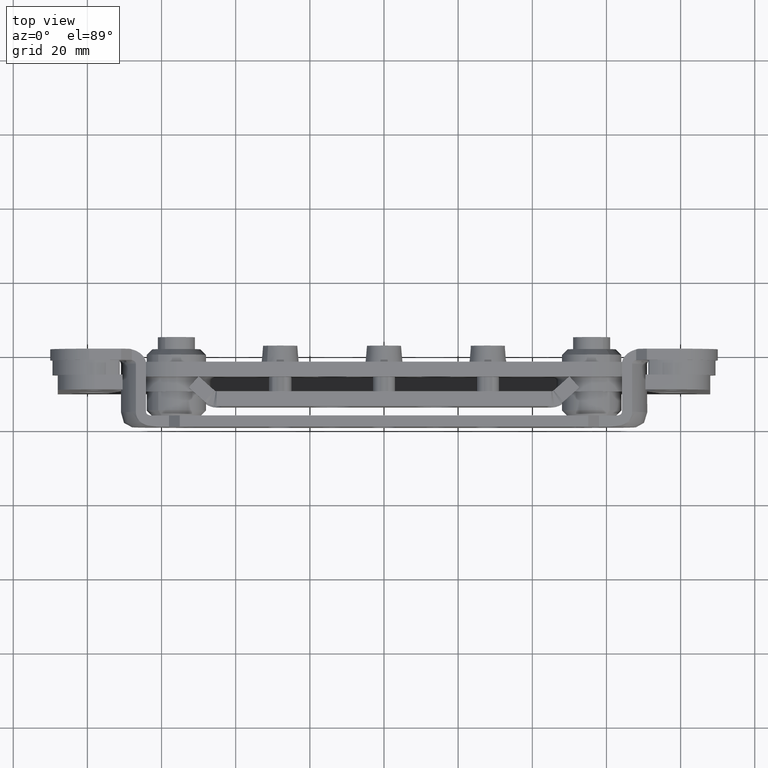
[diagram: clean part render]
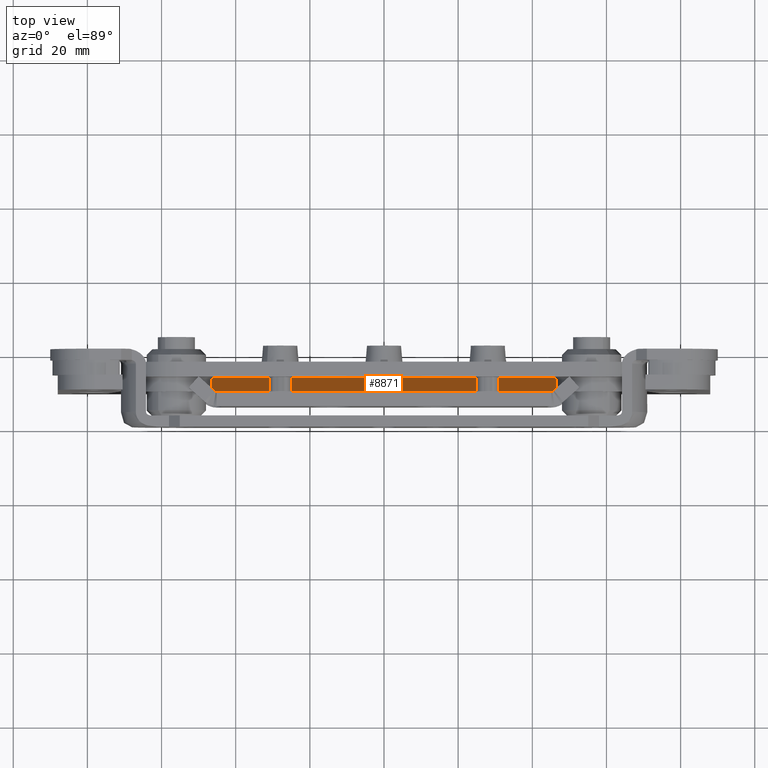
[diagram: same view with one face highlighted and labeled with its STEP entity id]
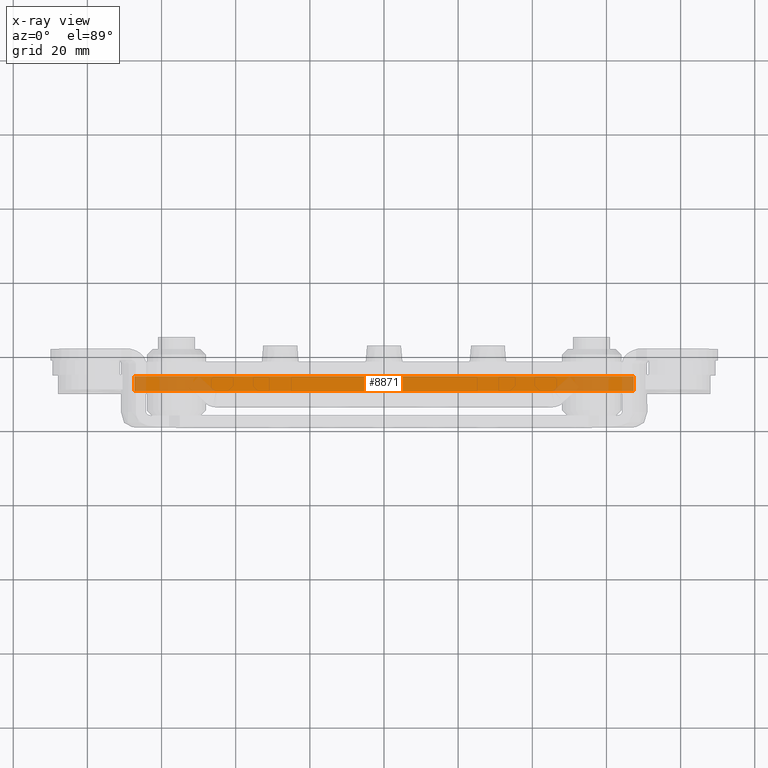
[diagram: x-ray of the same camera — body ghosted, the highlighted face saturated]
A machine part, top view. The second image highlights one B-rep face of the part: STEP entity #8871.
The next image is the same camera in x-ray: the body ghosted, the highlighted face saturated — about 26% of this face is hidden behind the body in this view.
In plain terms, the highlighted planar face has unit normal (-0, 0, 1).
Its self-contained STEP definition (entity closure, byte-faithful):
#47 = DIRECTION ( 'NONE',  ( 0.000000000000000000, -1.000000000000000000, 0.000000000000000000 ) ) ;
#177 = FACE_OUTER_BOUND ( 'NONE', #3874, .T. ) ;
#609 = EDGE_CURVE ( 'NONE', #796, #5939, #2152, .T. ) ;
#667 = ORIENTED_EDGE ( 'NONE', *, *, #1344, .T. ) ;
#793 = DIRECTION ( 'NONE',  ( -1.000000000000000000, -0.000000000000000000, -0.000000000000000000 ) ) ;
#796 = VERTEX_POINT ( 'NONE', #1902 ) ;
#1344 = EDGE_CURVE ( 'NONE', #796, #9331, #7687, .T. ) ;
#1902 = CARTESIAN_POINT ( 'NONE',  ( 67.34999999999999432, 0.000000000000000000, 13.00000000000001066 ) ) ;
#2066 = LINE ( 'NONE', #11052, #9233 ) ;
#2152 = LINE ( 'NONE', #9612, #4011 ) ;
#2266 = ORIENTED_EDGE ( 'NONE', *, *, #10273, .F. ) ;
#2622 = CARTESIAN_POINT ( 'NONE',  ( 0.000000000000000000, -4.000000000000000000, 13.00000000000001066 ) ) ;
#3686 = VECTOR ( 'NONE', #3938, 1000.000000000000000 ) ;
#3771 = LINE ( 'NONE', #2622, #5685 ) ;
#3823 = CARTESIAN_POINT ( 'NONE',  ( -67.34999999999999432, 0.000000000000000000, 13.00000000000000533 ) ) ;
#3874 = EDGE_LOOP ( 'NONE', ( #5732, #667, #8819, #2266 ) ) ;
#3885 = PLANE ( 'NONE',  #9307 ) ;
#3938 = DIRECTION ( 'NONE',  ( -1.000000000000000000, -0.000000000000000000, -0.000000000000000000 ) ) ;
#4011 = VECTOR ( 'NONE', #5854, 1000.000000000000000 ) ;
#4665 = CARTESIAN_POINT ( 'NONE',  ( -67.34999999999999432, 0.000000000000000000, 13.00000000000000533 ) ) ;
#5685 = VECTOR ( 'NONE', #793, 1000.000000000000000 ) ;
#5732 = ORIENTED_EDGE ( 'NONE', *, *, #609, .F. ) ;
#5854 = DIRECTION ( 'NONE',  ( 0.000000000000000000, -1.000000000000000000, 0.000000000000000000 ) ) ;
#5939 = VERTEX_POINT ( 'NONE', #9993 ) ;
#6317 = CARTESIAN_POINT ( 'NONE',  ( -67.34999999999999432, -4.000000000000000000, 13.00000000000000533 ) ) ;
#6753 = VERTEX_POINT ( 'NONE', #6317 ) ;
#6831 = EDGE_CURVE ( 'NONE', #9331, #6753, #2066, .T. ) ;
#7525 = DIRECTION ( 'NONE',  ( -0.000000000000000000, 0.000000000000000000, 1.000000000000000000 ) ) ;
#7687 = LINE ( 'NONE', #8668, #3686 ) ;
#8668 = CARTESIAN_POINT ( 'NONE',  ( -67.34999999999999432, 0.000000000000000000, 13.00000000000000533 ) ) ;
#8819 = ORIENTED_EDGE ( 'NONE', *, *, #6831, .T. ) ;
#8871 = ADVANCED_FACE ( 'NONE', ( #177 ), #3885, .T. ) ;
#9233 = VECTOR ( 'NONE', #47, 1000.000000000000000 ) ;
#9307 = AXIS2_PLACEMENT_3D ( 'NONE', #3823, #7525, #10198 ) ;
#9331 = VERTEX_POINT ( 'NONE', #4665 ) ;
#9612 = CARTESIAN_POINT ( 'NONE',  ( 67.34999999999999432, 0.000000000000000000, 13.00000000000001066 ) ) ;
#9993 = CARTESIAN_POINT ( 'NONE',  ( 67.34999999999999432, -4.000000000000000000, 13.00000000000001066 ) ) ;
#10198 = DIRECTION ( 'NONE',  ( -1.000000000000000000, -0.000000000000000000, -0.000000000000000000 ) ) ;
#10273 = EDGE_CURVE ( 'NONE', #5939, #6753, #3771, .T. ) ;
#11052 = CARTESIAN_POINT ( 'NONE',  ( -67.34999999999999432, 0.000000000000000000, 13.00000000000000533 ) ) ;